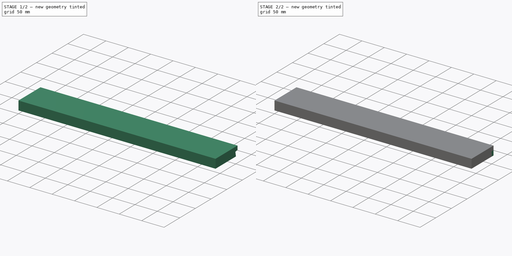
[diagram: build sequence overview — one tinted view per stage of 2, left to right]
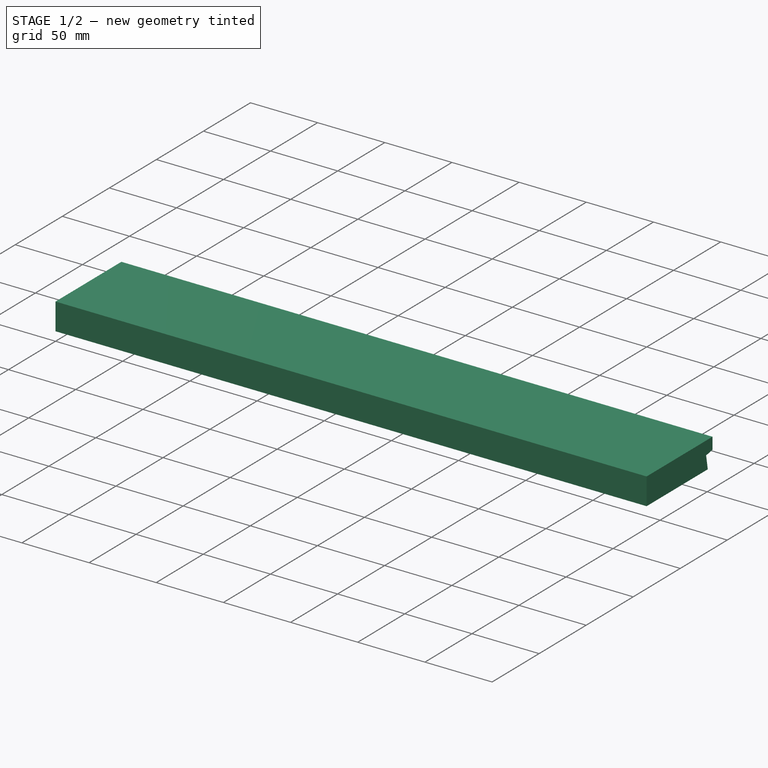
[diagram: stage 1 of 2 — iso view after this stage's code; geometry added in this stage tinted green]
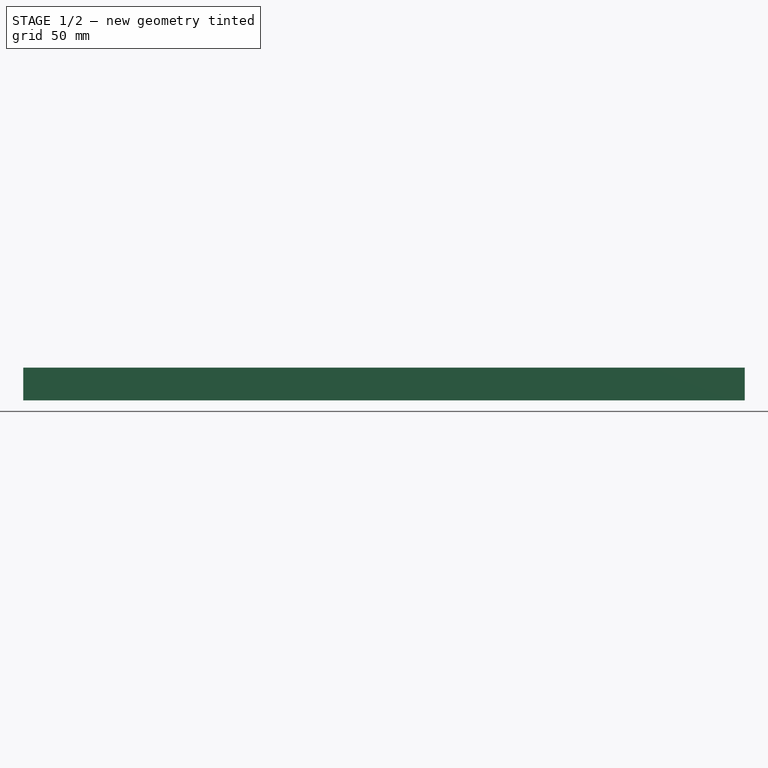
[diagram: stage 1 of 2 — front view after this stage's code; geometry added in this stage tinted green]
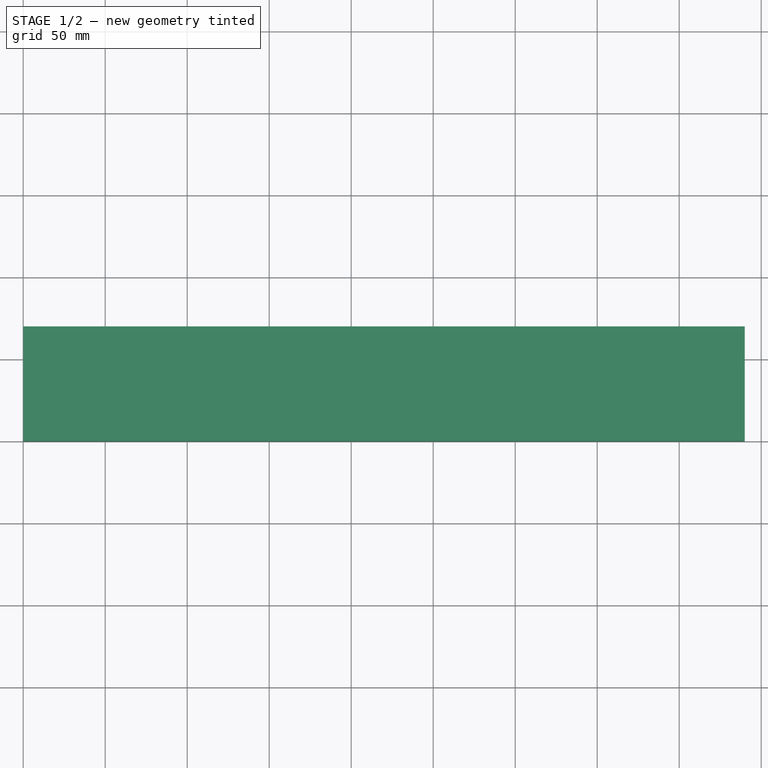
[diagram: stage 1 of 2 — top view after this stage's code; geometry added in this stage tinted green]
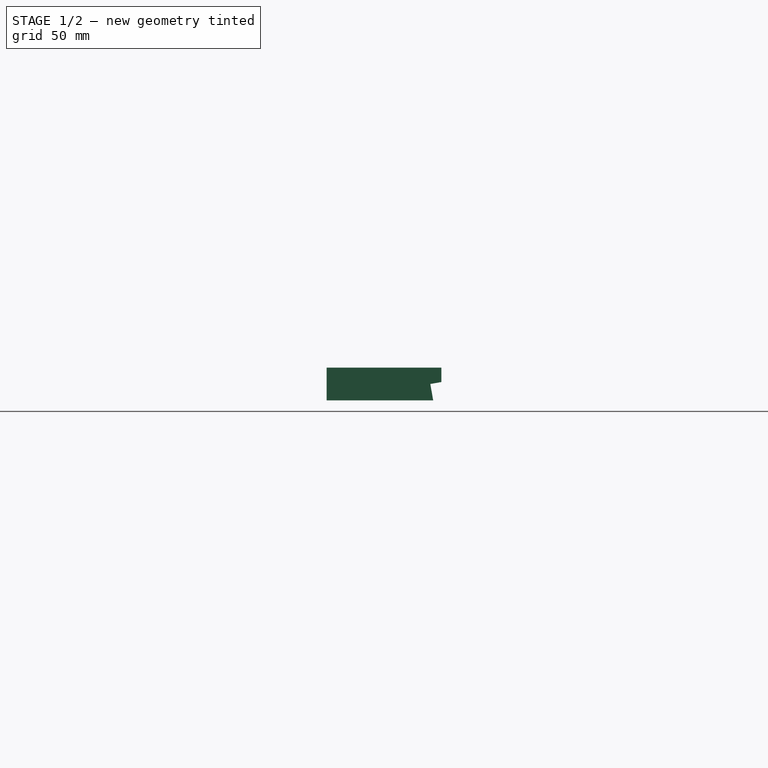
[diagram: stage 1 of 2 — right view after this stage's code; geometry added in this stage tinted green]
FCSTD DOCUMENT  (FreeCAD 0.16R6706 (Git))
Label: front_plate
License: All rights reserved
LicenseURL: http://en.wikipedia.org/wiki/All_rights_reserved
objects: Sketcher::SketchObject×4, PartDesign::Pad×3, PartDesign::Pocket×1, Part::Feature×1
note: 13 computed .brp shape members not serialized (recipe doc carries the construction recipe); baked Part::Feature solids carry a one-line shape summary decoded from their .brp

FEATURE [Sketcher::SketchObject] Sketch
  sketch-geometry (5):
    g0: LineSegment StartX=0 StartY=0 StartZ=0 EndX=440 EndY=0 EndZ=0
    g1: LineSegment StartX=440 StartY=0 StartZ=0 EndX=440 EndY=70 EndZ=0
    g2: LineSegment StartX=440 StartY=70 StartZ=0 EndX=0 EndY=70 EndZ=0
    g3: LineSegment StartX=0 StartY=70 StartZ=0 EndX=0 EndY=0 EndZ=0
    g4: GeomPoint [constr] X=26.7411 Y=50.4587 Z=0
  constraints (11):
    c: Coincident(g0,g1)
    c: Coincident(g1,g2)
    c: Coincident(g2,g3)
    c: Coincident(g3,g0)
    c: Horizontal(g0)
    c: Horizontal(g2)
    c: Vertical(g1)
    c: Vertical(g3)
    c: Coincident(g0,g-1)
    c: DistanceX(g2,g2) = 440
    c: DistanceY(g3,g3) = 70
FEATURE [PartDesign::Pad] Pad
  Length = 20
  Length2 = 100
  Sketch = -> Sketch
  Type = 0
FEATURE [Sketcher::SketchObject] Sketch001
  ExternalGeometry = -> [Pad]
  Placement = pos=(440,0,0) rot=(0.57735,0.57735,0.57735;2.0944rad)
  Support = -> Pad [Face2]
  sketch-geometry (4):
    g0: LineSegment StartX=65 StartY=0 StartZ=0 EndX=63.2367 EndY=10 EndZ=0
    g1: LineSegment StartX=63.2367 StartY=10 StartZ=0 EndX=70 EndY=11.1925 EndZ=0
    g2: LineSegment StartX=65 StartY=0 StartZ=0 EndX=70 EndY=0 EndZ=0
    g3: LineSegment StartX=70 StartY=0 StartZ=0 EndX=70 EndY=11.1925 EndZ=0
  constraints (11):
    c: PointOnObject(g0,g-3)
    c: PointOnObject(g1,g-4)
    c: Coincident(g0,g1)
    c: DistanceX(g0,g-4) = 5
    c: DistanceY(g0,g0) = 10
    c: Angle(g0,g1) = 1.5708
    c: DistanceX(g0,g0) = 1.76327
    c: Coincident(g2,g0)
    c: Coincident(g2,g-4)
    c: Coincident(g3,g2)
    c: Coincident(g1,g3)
FEATURE [PartDesign::Pocket] Pocket
  Length = 5
  Sketch = -> Sketch001
  Type = 1
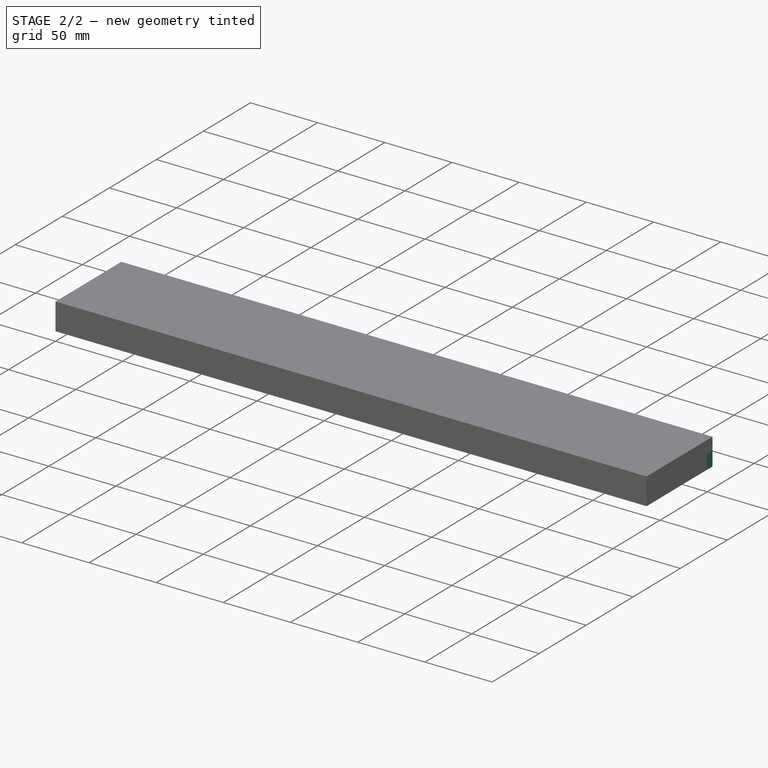
[diagram: stage 2 of 2 — iso view after this stage's code; geometry added in this stage tinted green]
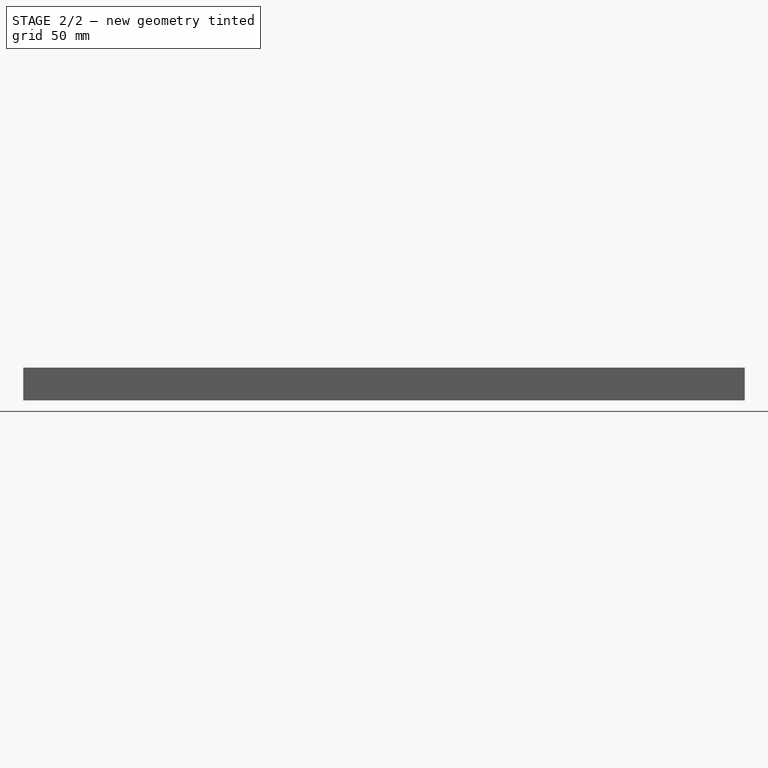
[diagram: stage 2 of 2 — front view after this stage's code; geometry added in this stage tinted green]
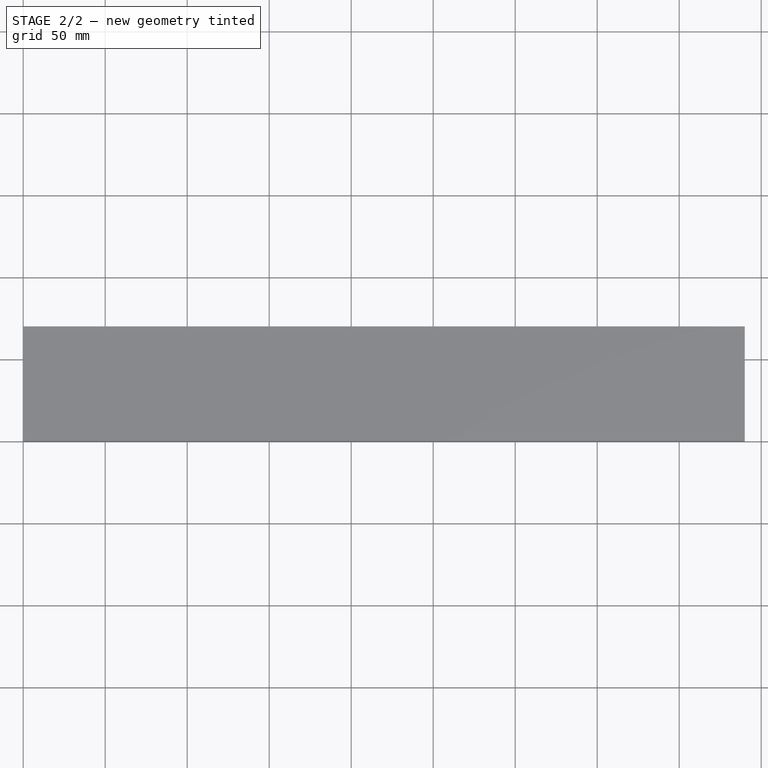
[diagram: stage 2 of 2 — top view after this stage's code; geometry added in this stage tinted green]
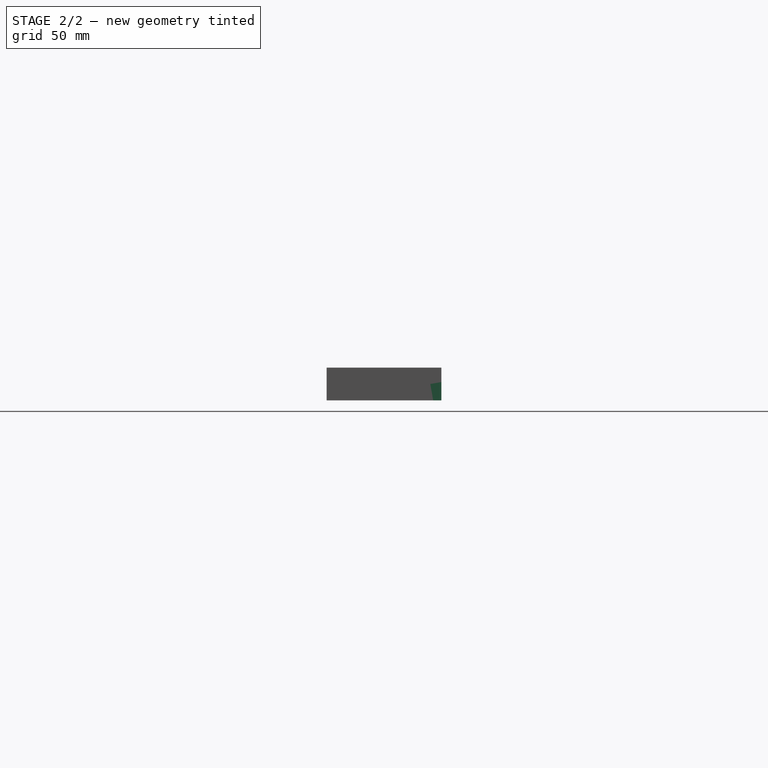
[diagram: stage 2 of 2 — right view after this stage's code; geometry added in this stage tinted green]
FEATURE [Sketcher::SketchObject] Sketch002
  ExternalGeometry = -> [Pocket]
  Placement = pos=(440,0,0) rot=(0.57735,0.57735,0.57735;2.0944rad)
  Support = -> Pocket [Face3]
  sketch-geometry (4):
    g0: LineSegment StartX=63.2367 StartY=10 StartZ=0 EndX=70 EndY=11.1925 EndZ=0
    g1: LineSegment StartX=70 StartY=11.1925 StartZ=0 EndX=70 EndY=0 EndZ=0
    g2: LineSegment StartX=70 StartY=0 StartZ=0 EndX=65 EndY=0 EndZ=0
    g3: LineSegment StartX=65 StartY=0 StartZ=0 EndX=63.2367 EndY=10 EndZ=0
  constraints (9):
    c: Coincident(g-4,g0)
    c: Coincident(g0,g-4)
    c: Coincident(g0,g1)
    c: PointOnObject(g1,g-1)
    c: Vertical(g1)
    c: Coincident(g1,g2)
    c: Coincident(g2,g-3)
    c: Coincident(g2,g3)
    c: Coincident(g3,g0)
FEATURE [PartDesign::Pad] Pad001
  Length = 10
  Length2 = 100
  Reversed = true
  Sketch = -> Sketch002
  Type = 0
FEATURE [Sketcher::SketchObject] Sketch003
  ExternalGeometry = -> [Pad001]
  Placement = pos=(0,0,0) rot=(0.57735,-0.57735,-0.57735;2.0944rad)
  Support = -> Pad001 [Face2]
  sketch-geometry (4):
    g0: LineSegment StartX=-70 StartY=11.1925 StartZ=0 EndX=-63.2367 EndY=10 EndZ=0
    g1: LineSegment StartX=-63.2367 StartY=10 StartZ=0 EndX=-65 EndY=0 EndZ=0
    g2: LineSegment StartX=-65 StartY=0 StartZ=0 EndX=-70 EndY=0 EndZ=0
    g3: LineSegment StartX=-70 StartY=0 StartZ=0 EndX=-70 EndY=11.1925 EndZ=0
  constraints (9):
    c: Coincident(g-3,g0)
    c: Coincident(g0,g-4)
    c: Coincident(g0,g1)
    c: Coincident(g1,g-4)
    c: Coincident(g1,g2)
    c: PointOnObject(g2,g-1)
    c: Coincident(g2,g3)
    c: Coincident(g3,g0)
    c: Vertical(g3)
FEATURE [PartDesign::Pad] Pad002
  Length = 10
  Length2 = 100
  Reversed = true
  Sketch = -> Sketch003
  Type = 0
FEATURE [Part::Feature] Pad002001  label="Pad003"
  shape: bbox 440 x 70 x 20 mm, 16 faces (baked)
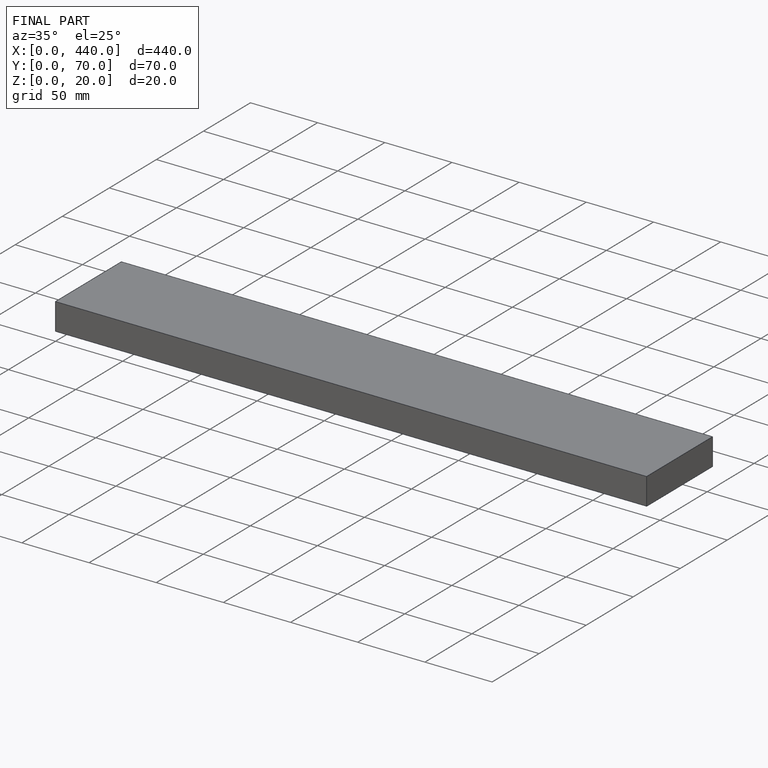
[diagram: finished part — iso view with bounding-box wireframe]
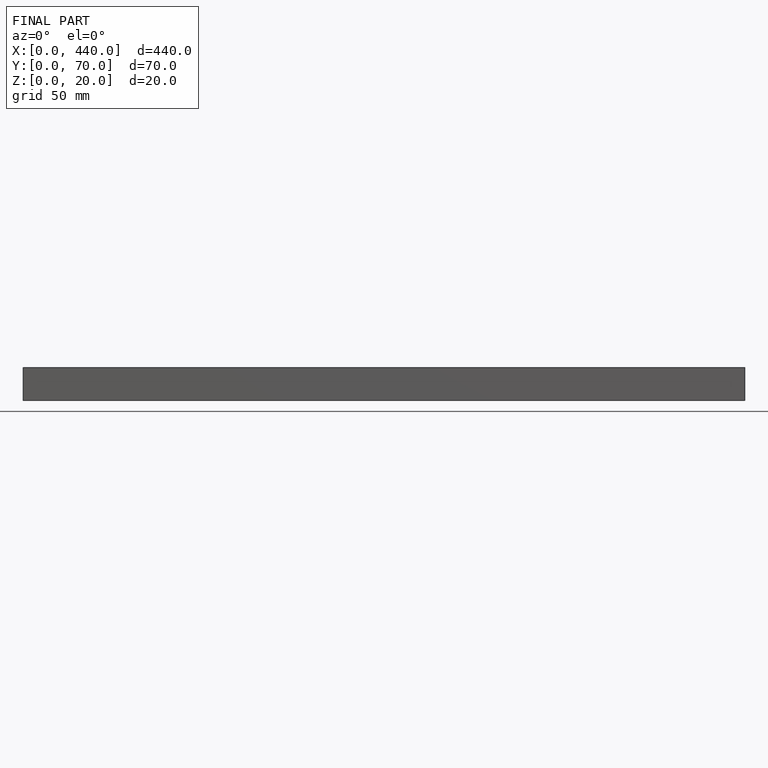
[diagram: finished part — front view with bounding-box wireframe]
